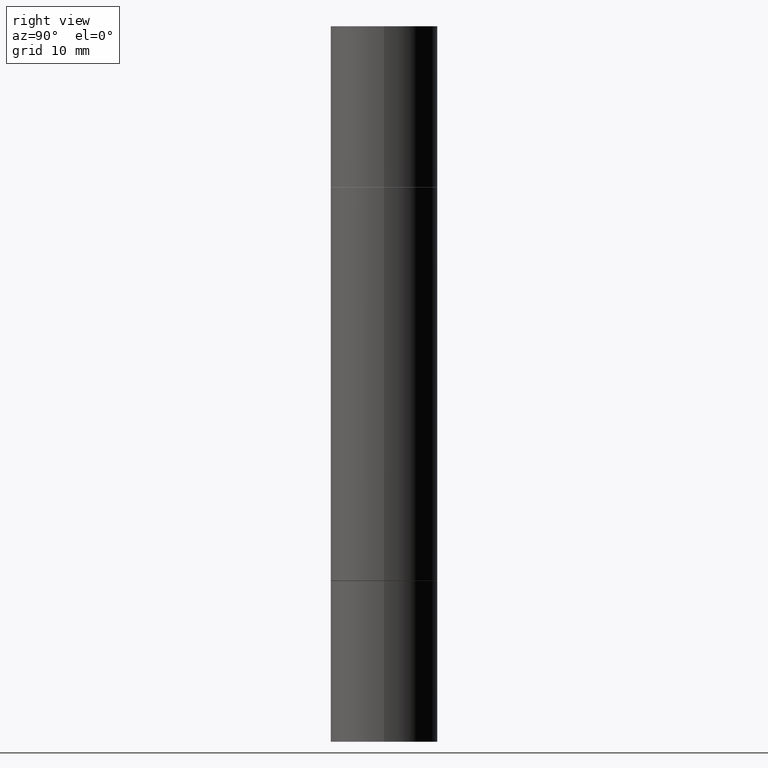
[diagram: clean part render]
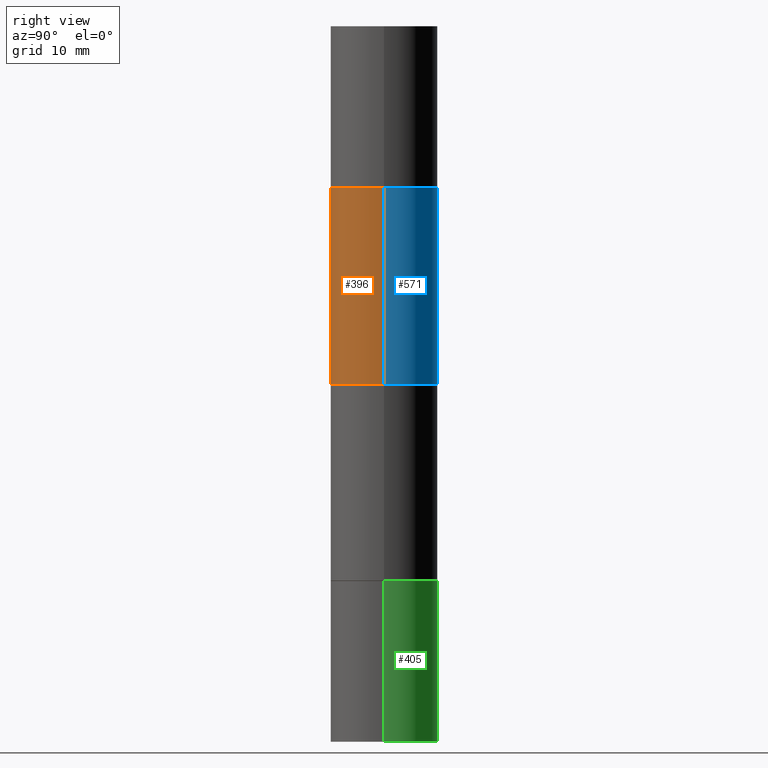
[diagram: same view with three faces highlighted in distinct colors, each labeled with its STEP entity id]
A machine part, right view with three faces highlighted in distinct colors.
Their STEP definitions:

[orange] entity #396 — the highlighted cylindrical surface (partial cylindrical patch) has radius 4.7625 mm, axis along (-0, -0, -1).
#2 = FACE_OUTER_BOUND ( 'NONE', #395, .T. ) ;
#7 = DIRECTION ( 'NONE',  ( -2.445468806185136597E-29, -3.492890411551752677E-15, -1.000000000000000000 ) ) ;
#14 = LINE ( 'NONE', #112, #566 ) ;
#80 = VERTEX_POINT ( 'NONE', #288 ) ;
#96 = EDGE_CURVE ( 'NONE', #263, #80, #315, .T. ) ;
#112 = CARTESIAN_POINT ( 'NONE',  ( 0.1874999999999999167, -1.003977019005979665E-14, -2.499999999999999556 ) ) ;
#124 = CARTESIAN_POINT ( 'NONE',  ( -0.1874999999999999167, -7.444121313411459473E-15, -2.499999999999999556 ) ) ;
#182 = DIRECTION ( 'NONE',  ( -0.000000000000000000, -3.492185875197449130E-15, -1.000000000000000000 ) ) ;
#210 = DIRECTION ( 'NONE',  ( 1.000000000000000000, -6.982962677686270655E-15, 0.000000000000000000 ) ) ;
#239 = CARTESIAN_POINT ( 'NONE',  ( -0.1874999999999999167, -1.878200442603741470E-15, -1.249999999999999778 ) ) ;
#261 = CARTESIAN_POINT ( 'NONE',  ( 0.000000000000000000, -8.730464687993621641E-15, -2.499999999999999556 ) ) ;
#263 = VERTEX_POINT ( 'NONE', #370 ) ;
#273 = CIRCLE ( 'NONE', #441, 0.1874999999999999167 ) ;
#282 = EDGE_CURVE ( 'NONE', #80, #465, #14, .T. ) ;
#288 = CARTESIAN_POINT ( 'NONE',  ( 0.1875000000000000278, -3.274041462884052574E-15, -0.5629999999999997229 ) ) ;
#291 = DIRECTION ( 'NONE',  ( 0.000000000000000000, 1.000000000000000000, -2.913971193241881950E-15 ) ) ;
#300 = AXIS2_PLACEMENT_3D ( 'NONE', #261, #7, #210 ) ;
#315 = CIRCLE ( 'NONE', #406, 0.1875000000000000278 ) ;
#344 = CARTESIAN_POINT ( 'NONE',  ( 3.056836007731420185E-29, -4.364351673553931682E-15, -1.249999999999999778 ) ) ;
#369 = ORIENTED_EDGE ( 'NONE', *, *, #413, .T. ) ;
#370 = CARTESIAN_POINT ( 'NONE',  ( -0.1875000000000000278, -6.783925862357143136E-16, -0.5629999999999997229 ) ) ;
#395 = EDGE_LOOP ( 'NONE', ( #586, #369, #536, #631 ) ) ;
#396 = ADVANCED_FACE ( 'NONE', ( #2 ), #528, .T. ) ;
#406 = AXIS2_PLACEMENT_3D ( 'NONE', #436, #502, #649 ) ;
#413 = EDGE_CURVE ( 'NONE', #263, #576, #643, .T. ) ;
#426 = CARTESIAN_POINT ( 'NONE',  ( 0.1874999999999999167, -4.473849319252078646E-15, -1.249999999999999778 ) ) ;
#436 = CARTESIAN_POINT ( 'NONE',  ( 4.736873077580609355E-29, -1.964735960817877172E-15, -0.5629999999999997229 ) ) ;
#441 = AXIS2_PLACEMENT_3D ( 'NONE', #344, #182, #291 ) ;
#446 = DIRECTION ( 'NONE',  ( -2.445468806185136877E-29, -3.492890411551753071E-15, -1.000000000000000000 ) ) ;
#465 = VERTEX_POINT ( 'NONE', #426 ) ;
#502 = DIRECTION ( 'NONE',  ( 2.445468806185136597E-29, 3.492890411551752677E-15, 1.000000000000000000 ) ) ;
#528 = CYLINDRICAL_SURFACE ( 'NONE', #300, 0.1874999999999999167 ) ;
#536 = ORIENTED_EDGE ( 'NONE', *, *, #614, .F. ) ;
#566 = VECTOR ( 'NONE', #633, 39.37007874015748143 ) ;
#576 = VERTEX_POINT ( 'NONE', #239 ) ;
#586 = ORIENTED_EDGE ( 'NONE', *, *, #96, .F. ) ;
#614 = EDGE_CURVE ( 'NONE', #465, #576, #273, .T. ) ;
#631 = ORIENTED_EDGE ( 'NONE', *, *, #282, .F. ) ;
#633 = DIRECTION ( 'NONE',  ( -2.445468806185136877E-29, -3.492890411551753071E-15, -1.000000000000000000 ) ) ;
#639 = VECTOR ( 'NONE', #446, 39.37007874015748143 ) ;
#643 = LINE ( 'NONE', #124, #639 ) ;
#649 = DIRECTION ( 'NONE',  ( 1.000000000000000000, -6.982962677686266711E-15, 0.000000000000000000 ) ) ;

[blue] entity #571 — the highlighted cylindrical surface (partial cylindrical patch) has radius 4.7625 mm, axis along (-0, -0, -1).
#14 = LINE ( 'NONE', #112, #566 ) ;
#80 = VERTEX_POINT ( 'NONE', #288 ) ;
#87 = CYLINDRICAL_SURFACE ( 'NONE', #144, 0.1874999999999999167 ) ;
#112 = CARTESIAN_POINT ( 'NONE',  ( 0.1874999999999999167, -1.003977019005979665E-14, -2.499999999999999556 ) ) ;
#116 = ORIENTED_EDGE ( 'NONE', *, *, #295, .F. ) ;
#124 = CARTESIAN_POINT ( 'NONE',  ( -0.1874999999999999167, -7.444121313411459473E-15, -2.499999999999999556 ) ) ;
#143 = AXIS2_PLACEMENT_3D ( 'NONE', #156, #310, #574 ) ;
#144 = AXIS2_PLACEMENT_3D ( 'NONE', #483, #218, #451 ) ;
#148 = ORIENTED_EDGE ( 'NONE', *, *, #282, .T. ) ;
#156 = CARTESIAN_POINT ( 'NONE',  ( 4.736873077580609355E-29, -1.964735960817877172E-15, -0.5629999999999997229 ) ) ;
#159 = DIRECTION ( 'NONE',  ( 0.000000000000000000, 1.000000000000000000, -2.913971193241881950E-15 ) ) ;
#218 = DIRECTION ( 'NONE',  ( -2.445468806185136597E-29, -3.492890411551752677E-15, -1.000000000000000000 ) ) ;
#239 = CARTESIAN_POINT ( 'NONE',  ( -0.1874999999999999167, -1.878200442603741470E-15, -1.249999999999999778 ) ) ;
#250 = ORIENTED_EDGE ( 'NONE', *, *, #413, .F. ) ;
#263 = VERTEX_POINT ( 'NONE', #370 ) ;
#282 = EDGE_CURVE ( 'NONE', #80, #465, #14, .T. ) ;
#288 = CARTESIAN_POINT ( 'NONE',  ( 0.1875000000000000278, -3.274041462884052574E-15, -0.5629999999999997229 ) ) ;
#295 = EDGE_CURVE ( 'NONE', #80, #263, #439, .T. ) ;
#310 = DIRECTION ( 'NONE',  ( 2.445468806185136597E-29, 3.492890411551752677E-15, 1.000000000000000000 ) ) ;
#318 = AXIS2_PLACEMENT_3D ( 'NONE', #415, #469, #159 ) ;
#325 = FACE_OUTER_BOUND ( 'NONE', #589, .T. ) ;
#333 = EDGE_CURVE ( 'NONE', #576, #465, #620, .T. ) ;
#370 = CARTESIAN_POINT ( 'NONE',  ( -0.1875000000000000278, -6.783925862357143136E-16, -0.5629999999999997229 ) ) ;
#413 = EDGE_CURVE ( 'NONE', #263, #576, #643, .T. ) ;
#415 = CARTESIAN_POINT ( 'NONE',  ( 3.056836007731420185E-29, -4.364351673553931682E-15, -1.249999999999999778 ) ) ;
#426 = CARTESIAN_POINT ( 'NONE',  ( 0.1874999999999999167, -4.473849319252078646E-15, -1.249999999999999778 ) ) ;
#439 = CIRCLE ( 'NONE', #143, 0.1875000000000000278 ) ;
#446 = DIRECTION ( 'NONE',  ( -2.445468806185136877E-29, -3.492890411551753071E-15, -1.000000000000000000 ) ) ;
#451 = DIRECTION ( 'NONE',  ( 1.000000000000000000, -6.982962677686270655E-15, 0.000000000000000000 ) ) ;
#465 = VERTEX_POINT ( 'NONE', #426 ) ;
#469 = DIRECTION ( 'NONE',  ( -0.000000000000000000, -3.492185875197449130E-15, -1.000000000000000000 ) ) ;
#483 = CARTESIAN_POINT ( 'NONE',  ( 0.000000000000000000, -8.730464687993621641E-15, -2.499999999999999556 ) ) ;
#566 = VECTOR ( 'NONE', #633, 39.37007874015748143 ) ;
#571 = ADVANCED_FACE ( 'NONE', ( #325 ), #87, .T. ) ;
#574 = DIRECTION ( 'NONE',  ( 1.000000000000000000, -6.982962677686266711E-15, 0.000000000000000000 ) ) ;
#576 = VERTEX_POINT ( 'NONE', #239 ) ;
#589 = EDGE_LOOP ( 'NONE', ( #250, #116, #148, #644 ) ) ;
#620 = CIRCLE ( 'NONE', #318, 0.1874999999999999167 ) ;
#633 = DIRECTION ( 'NONE',  ( -2.445468806185136877E-29, -3.492890411551753071E-15, -1.000000000000000000 ) ) ;
#639 = VECTOR ( 'NONE', #446, 39.37007874015748143 ) ;
#643 = LINE ( 'NONE', #124, #639 ) ;
#644 = ORIENTED_EDGE ( 'NONE', *, *, #333, .F. ) ;

[green] entity #405 — the highlighted cylindrical surface (partial cylindrical patch) has radius 4.7625 mm, axis along (-0, 0, 1).
#36 = DIRECTION ( 'NONE',  ( -2.445468806185136877E-29, 3.491481338843145188E-15, 1.000000000000000000 ) ) ;
#50 = AXIS2_PLACEMENT_3D ( 'NONE', #99, #424, #150 ) ;
#65 = ORIENTED_EDGE ( 'NONE', *, *, #88, .F. ) ;
#88 = EDGE_CURVE ( 'NONE', #367, #213, #223, .T. ) ;
#99 = CARTESIAN_POINT ( 'NONE',  ( 6.113672015462842613E-29, -8.728703347107864943E-15, -2.500000000000000000 ) ) ;
#123 = EDGE_CURVE ( 'NONE', #225, #412, #505, .T. ) ;
#132 = DIRECTION ( 'NONE',  ( 1.000000000000000000, -6.982962677686265922E-15, 4.876176775795935793E-29 ) ) ;
#150 = DIRECTION ( 'NONE',  ( 1.000000000000000000, -6.982962677686266711E-15, 0.000000000000000000 ) ) ;
#169 = DIRECTION ( 'NONE',  ( -2.445468806185136597E-29, 3.491481338843145583E-15, 1.000000000000000000 ) ) ;
#193 = CARTESIAN_POINT ( 'NONE',  ( 0.1875000000000000278, -8.075796336744191053E-15, -1.937999999999999945 ) ) ;
#199 = AXIS2_PLACEMENT_3D ( 'NONE', #538, #169, #132 ) ;
#207 = CIRCLE ( 'NONE', #630, 0.1875000000000000278 ) ;
#208 = CARTESIAN_POINT ( 'NONE',  ( 0.1875000000000000278, -1.003800884917403995E-14, -2.500000000000000000 ) ) ;
#212 = CYLINDRICAL_SURFACE ( 'NONE', #199, 0.1875000000000000278 ) ;
#213 = VERTEX_POINT ( 'NONE', #193 ) ;
#222 = CARTESIAN_POINT ( 'NONE',  ( -0.1875000000000000278, -6.415329461342752645E-15, -1.937999999999999945 ) ) ;
#223 = LINE ( 'NONE', #277, #284 ) ;
#225 = VERTEX_POINT ( 'NONE', #680 ) ;
#249 = EDGE_CURVE ( 'NONE', #367, #225, #542, .T. ) ;
#277 = CARTESIAN_POINT ( 'NONE',  ( 0.1875000000000000278, -1.309305502066175008E-15, 9.142831454617381013E-30 ) ) ;
#284 = VECTOR ( 'NONE', #36, 39.37007874015748143 ) ;
#285 = ORIENTED_EDGE ( 'NONE', *, *, #249, .T. ) ;
#287 = DIRECTION ( 'NONE',  ( -2.445468806185136597E-29, 3.491481338843145583E-15, 1.000000000000000000 ) ) ;
#367 = VERTEX_POINT ( 'NONE', #208 ) ;
#405 = ADVANCED_FACE ( 'NONE', ( #477 ), #212, .T. ) ;
#412 = VERTEX_POINT ( 'NONE', #222 ) ;
#424 = DIRECTION ( 'NONE',  ( -2.445468806185136597E-29, 3.491481338843145583E-15, 1.000000000000000000 ) ) ;
#433 = DIRECTION ( 'NONE',  ( 1.000000000000000000, -6.982962677686266711E-15, 0.000000000000000000 ) ) ;
#442 = ORIENTED_EDGE ( 'NONE', *, *, #475, .F. ) ;
#463 = DIRECTION ( 'NONE',  ( -2.445468806185136877E-29, 3.491481338843145188E-15, 1.000000000000000000 ) ) ;
#475 = EDGE_CURVE ( 'NONE', #213, #412, #207, .T. ) ;
#477 = FACE_OUTER_BOUND ( 'NONE', #591, .T. ) ;
#496 = ORIENTED_EDGE ( 'NONE', *, *, #123, .T. ) ;
#505 = LINE ( 'NONE', #507, #581 ) ;
#507 = CARTESIAN_POINT ( 'NONE',  ( -0.1875000000000000278, 1.332267629550188046E-15, -9.223003294227947991E-30 ) ) ;
#538 = CARTESIAN_POINT ( 'NONE',  ( 0.000000000000000000, 0.000000000000000000, 0.000000000000000000 ) ) ;
#542 = CIRCLE ( 'NONE', #50, 0.1875000000000000278 ) ;
#581 = VECTOR ( 'NONE', #463, 39.37007874015748143 ) ;
#591 = EDGE_LOOP ( 'NONE', ( #285, #496, #442, #65 ) ) ;
#630 = AXIS2_PLACEMENT_3D ( 'NONE', #660, #287, #433 ) ;
#660 = CARTESIAN_POINT ( 'NONE',  ( 4.739318546386794397E-29, -6.766490834678016045E-15, -1.937999999999999945 ) ) ;
#680 = CARTESIAN_POINT ( 'NONE',  ( -0.1875000000000000278, -6.415329461342752645E-15, -2.500000000000000000 ) ) ;